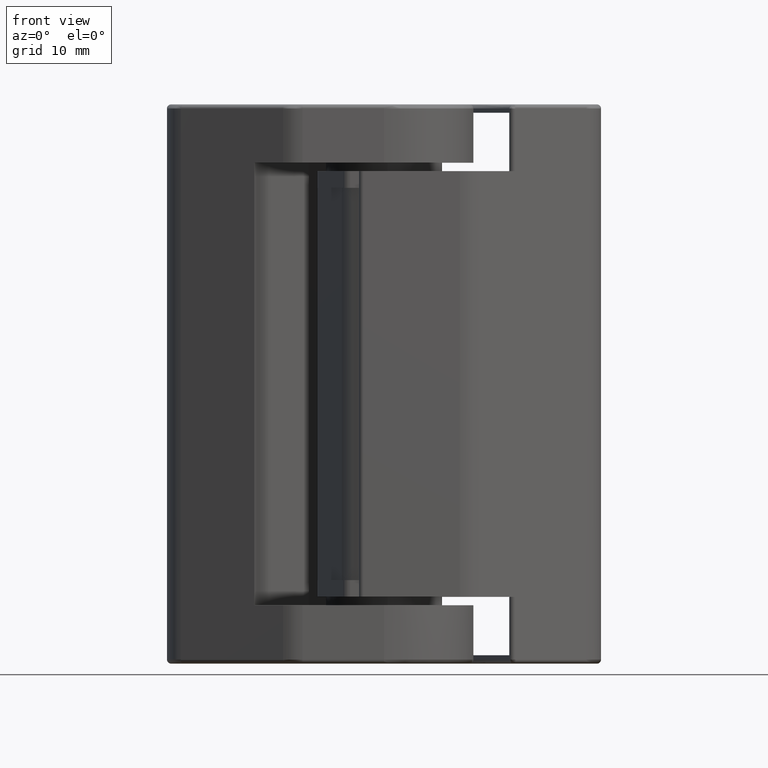
[diagram: clean part render]
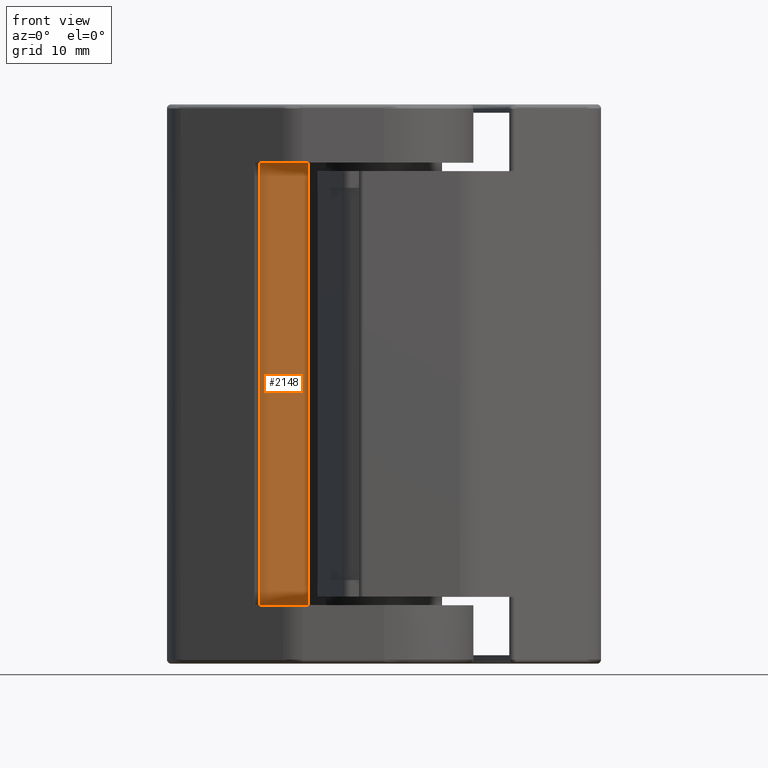
[diagram: same view with one face highlighted and labeled with its STEP entity id]
A machine part, front view. The second image highlights one B-rep face of the part: STEP entity #2148.
In plain terms, the highlighted face is a freeform B-spline surface patch.
Its self-contained STEP definition (entity closure, byte-faithful):
#2113=CARTESIAN_POINT('',(-15.143420240027231,-3.140715987974022,4.352650102723934));
#2114=CARTESIAN_POINT('',(-8.707734659338071,8.006218419318026,4.352650102723934));
#2115=CARTESIAN_POINT('',(-15.143420240027231,-3.140715987974022,62.647351318846518));
#2116=CARTESIAN_POINT('',(-8.707734659338071,8.006218419318026,62.647351318846518));
#2117=B_SPLINE_SURFACE_WITH_KNOTS('',1,1,((#2113,#2115),(#2114,#2116)),.UNSPECIFIED.,.F.,.F.,.U.,(2,2),(2,2),(0.0,12.871371161378329),(0.0,58.294701216122583),.UNSPECIFIED.);
#2118=CARTESIAN_POINT('',(-14.851155056305400,-2.634497840484470,60.0));
#2119=VERTEX_POINT('',#2118);
#2120=CARTESIAN_POINT('',(-9.0,7.500000000000000,60.0));
#2121=VERTEX_POINT('',#2120);
#2122=CARTESIAN_POINT('',(-14.851155056305400,-2.634497840484470,60.0));
#2123=CARTESIAN_POINT('',(-9.0,7.500000000000000,60.0));
#2124=QUASI_UNIFORM_CURVE('',1,(#2122,#2123),.UNSPECIFIED.,.F.,.U.);
#2125=EDGE_CURVE('',#2119,#2121,#2124,.T.);
#2126=ORIENTED_EDGE('',*,*,#2125,.F.);
#2127=CARTESIAN_POINT('',(-14.851155056305400,-2.634497840484470,6.999999999999671));
#2128=VERTEX_POINT('',#2127);
#2129=CARTESIAN_POINT('',(-14.851155056305400,-2.634497840484470,6.999999999999671));
#2130=CARTESIAN_POINT('',(-14.851155056305400,-2.634497840484470,60.0));
#2131=QUASI_UNIFORM_CURVE('',1,(#2129,#2130),.UNSPECIFIED.,.F.,.U.);
#2132=EDGE_CURVE('',#2128,#2119,#2131,.T.);
#2133=ORIENTED_EDGE('',*,*,#2132,.F.);
#2134=CARTESIAN_POINT('',(-9.0,7.500000000000000,6.999999999999671));
#2135=VERTEX_POINT('',#2134);
#2136=CARTESIAN_POINT('',(-14.851155056305400,-2.634497840484470,6.999999999999671));
#2137=CARTESIAN_POINT('',(-9.0,7.500000000000000,6.999999999999671));
#2138=QUASI_UNIFORM_CURVE('',1,(#2136,#2137),.UNSPECIFIED.,.F.,.U.);
#2139=EDGE_CURVE('',#2128,#2135,#2138,.T.);
#2140=ORIENTED_EDGE('',*,*,#2139,.T.);
#2141=CARTESIAN_POINT('',(-9.0,7.500000000000000,6.999999999999671));
#2142=CARTESIAN_POINT('',(-9.0,7.500000000000000,60.0));
#2143=QUASI_UNIFORM_CURVE('',1,(#2141,#2142),.UNSPECIFIED.,.F.,.U.);
#2144=EDGE_CURVE('',#2135,#2121,#2143,.T.);
#2145=ORIENTED_EDGE('',*,*,#2144,.T.);
#2146=EDGE_LOOP('',(#2126,#2133,#2140,#2145));
#2147=FACE_OUTER_BOUND('',#2146,.T.);
#2148=ADVANCED_FACE('',(#2147),#2117,.T.);